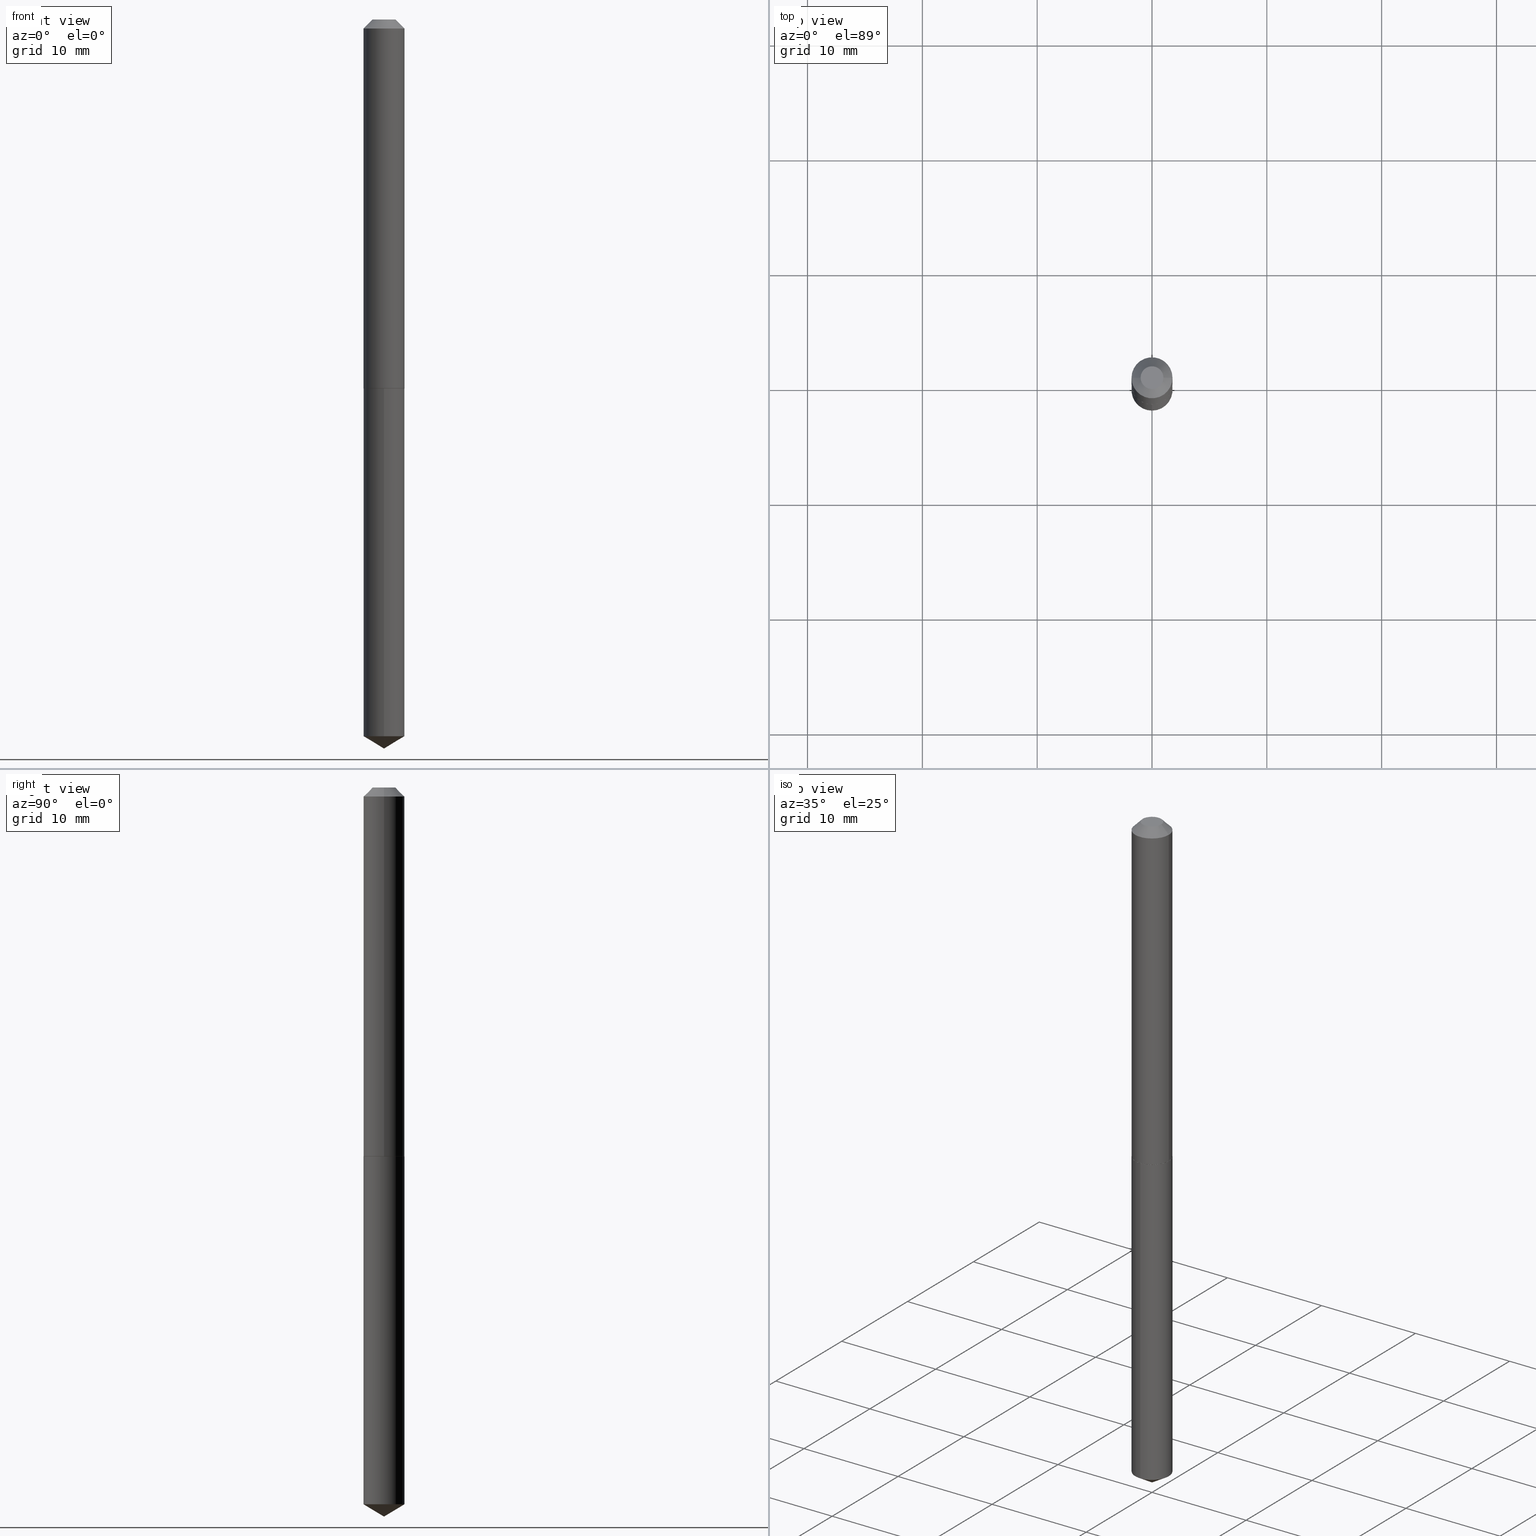
[diagram: canonical four-view strip — front | top / right | iso, engineering-drawing reading convention]
A machine part, canonical four-view strip (front | top / right | iso — engineering-drawing reading convention). The complete STEP part file that produces these views, byte-faithful:
ISO-10303-21;
HEADER;
FILE_DESCRIPTION (( 'STEP AP203' ),
    '1' );
FILE_NAME ('57137.STEP',
    '2024-04-22T22:45:14',
    ( '' ),
    ( '' ),
    'SwSTEP 2.0',
    'SolidWorks 2023',
    '' );
FILE_SCHEMA (( 'CONFIG_CONTROL_DESIGN' ));
ENDSEC;

DATA;
#1 = EDGE_CURVE ( 'NONE', #241, #202, #126, .T. ) ;
#2 = CIRCLE ( 'NONE', #372, 0.06980000000000016747 ) ;
#3 = DIRECTION ( 'NONE',  ( 0.000000000000000000, 0.000000000000000000, 1.000000000000000000 ) ) ;
#4 = ORIENTED_EDGE ( 'NONE', *, *, #49, .F. ) ;
#5 = DATE_AND_TIME ( #89, #296 ) ;
#6 = EDGE_CURVE ( 'NONE', #202, #34, #174, .T. ) ;
#7 = EDGE_LOOP ( 'NONE', ( #306, #141, #198 ) ) ;
#8 = APPROVAL_STATUS ( 'not_yet_approved' ) ;
#9 = VERTEX_POINT ( 'NONE', #217 ) ;
#10 = CARTESIAN_POINT ( 'NONE',  ( -9.016977139897410134E-28, 1.287238254418339173E-13, 36.87007874015748143 ) ) ;
#11 = DIRECTION ( 'NONE',  ( -6.982962677686265133E-15, -1.000000000000000000, 3.885985766236505386E-15 ) ) ;
#12 = DIRECTION ( 'NONE',  ( 1.000000000000000000, -6.982962677686269077E-15, 0.000000000000000000 ) ) ;
#13 = APPROVAL ( #363, 'UNSPECIFIED' ) ;
#14 = CARTESIAN_POINT ( 'NONE',  ( -0.07030000000000000138, 3.817934844024955509E-16, -0.03125000000000020817 ) ) ;
#15 = CIRCLE ( 'NONE', #132, 0.07030000000000015403 ) ;
#16 = DIRECTION ( 'NONE',  ( -6.982962677686266711E-15, -1.000000000000000000, 3.468864327941567787E-15 ) ) ;
#17 = CARTESIAN_POINT ( 'NONE',  ( 6.010534991931295014E-29, -8.580991141991559447E-15, -2.457759498482362748 ) ) ;
#18 = VERTEX_POINT ( 'NONE', #183 ) ;
#19 = AXIS2_PLACEMENT_3D ( 'NONE', #17, #291, #381 ) ;
#20 = APPROVAL_PERSON_ORGANIZATION ( #27, #13, #35 ) ;
#21 = EDGE_CURVE ( 'NONE', #18, #351, #336, .T. ) ;
#22 = DIRECTION ( 'NONE',  ( 2.445468806185136597E-29, -3.491481338843145583E-15, -1.000000000000000000 ) ) ;
#23 = DIRECTION ( 'NONE',  ( -2.445468806185136597E-29, 3.491481338843145583E-15, 1.000000000000000000 ) ) ;
#24 = CARTESIAN_POINT ( 'NONE',  ( -0.03905000000000000138, 3.272390884830720852E-16, 6.123233993638337752E-21 ) ) ;
#25 = ORIENTED_EDGE ( 'NONE', *, *, #304, .T. ) ;
#26 = CIRCLE ( 'NONE', #64, 0.03905000000000000138 ) ;
#27 = PERSON_AND_ORGANIZATION ( #71, #279 ) ;
#28 = CARTESIAN_POINT ( 'NONE',  ( 7.642090019328602662E-31, -1.091087918388490267E-16, -0.03125000000000020817 ) ) ;
#29 = COORDINATED_UNIVERSAL_TIME_OFFSET ( 5, 0, .BEHIND. ) ;
#30 = VERTEX_POINT ( 'NONE', #298 ) ;
#31 = CIRCLE ( 'NONE', #258, 0.07030000000000000138 ) ;
#32 = EDGE_CURVE ( 'NONE', #9, #351, #200, .T. ) ;
#33 = DATE_AND_TIME ( #175, #253 ) ;
#34 = VERTEX_POINT ( 'NONE', #205 ) ;
#35 = APPROVAL_ROLE ( '' ) ;
#36 = ORIENTED_EDGE ( 'NONE', *, *, #223, .T. ) ;
#37 = PRODUCT_DEFINITION_SHAPE ( 'NONE', 'NONE',  #184 ) ;
#38 = DIRECTION ( 'NONE',  ( -2.445468806185136597E-29, 3.491481338843145583E-15, 1.000000000000000000 ) ) ;
#39 = FACE_OUTER_BOUND ( 'NONE', #152, .T. ) ;
#40 = APPROVAL_PERSON_ORGANIZATION ( #210, #110, #115 ) ;
#41 = CARTESIAN_POINT ( 'NONE',  ( 6.010534991931295014E-29, -8.580991141991559447E-15, -2.457759498482362748 ) ) ;
#42 = APPROVAL ( #8, 'UNSPECIFIED' ) ;
#43 = LINE ( 'NONE', #307, #236 ) ;
#44 = DIRECTION ( 'NONE',  ( -1.000000000000000000, 6.982962677686265922E-15, -4.876176775795935793E-29 ) ) ;
#45 = FACE_OUTER_BOUND ( 'NONE', #7, .T. ) ;
#46 = ORIENTED_EDGE ( 'NONE', *, *, #70, .F. ) ;
#47 = DIRECTION ( 'NONE',  ( 0.7071067811866078578, -2.468850131082888544E-15, 0.7071067811864871766 ) ) ;
#48 = PLANE ( 'NONE',  #54 ) ;
#49 = EDGE_CURVE ( 'NONE', #301, #18, #339, .T. ) ;
#50 = ADVANCED_FACE ( 'NONE', ( #362 ), #91, .T. ) ;
#51 = DIRECTION ( 'NONE',  ( -2.445468806185136597E-29, 3.491481338843145583E-15, 1.000000000000000000 ) ) ;
#52 = DATE_AND_TIME ( #215, #361 ) ;
#53 = VECTOR ( 'NONE', #330, 39.37007874015748854 ) ;
#54 = AXIS2_PLACEMENT_3D ( 'NONE', #169, #293, #195 ) ;
#55 = PERSON_AND_ORGANIZATION_ROLE ( 'design_owner' ) ;
#56 = EDGE_LOOP ( 'NONE', ( #213, #364, #137, #125 ) ) ;
#57 = APPROVAL_STATUS ( 'not_yet_approved' ) ;
#58 = CARTESIAN_POINT ( 'NONE',  ( 3.094985321107909650E-29, -4.418818782439885749E-15, -1.265600000000000280 ) ) ;
#59 = PERSON_AND_ORGANIZATION ( #71, #279 ) ;
#60 = ORIENTED_EDGE ( 'NONE', *, *, #180, .T. ) ;
#61 = DIMENSIONAL_EXPONENTS ( 1.000000000000000000, 0.000000000000000000, 0.000000000000000000, 0.000000000000000000, 0.000000000000000000, 0.000000000000000000, 0.000000000000000000 ) ;
#62 = DESIGN_CONTEXT ( 'detailed design', #102, 'design' ) ;
#63 = APPROVAL_DATE_TIME ( #333, #42 ) ;
#64 = AXIS2_PLACEMENT_3D ( 'NONE', #266, #23, #346 ) ;
#65 = VERTEX_POINT ( 'NONE', #131 ) ;
#66 = DIRECTION ( 'NONE',  ( -2.445468806185136877E-29, 3.491481338843145188E-15, 1.000000000000000000 ) ) ;
#67 = DIRECTION ( 'NONE',  ( -2.445603691901062614E-29, 3.491288174820721411E-15, 1.000000000000000000 ) ) ;
#68 = AXIS2_PLACEMENT_3D ( 'NONE', #41, #221, #338 ) ;
#69 = DIRECTION ( 'NONE',  ( -2.445468806185136597E-29, 3.491481338843145583E-15, 1.000000000000000000 ) ) ;
#70 = EDGE_CURVE ( 'NONE', #317, #30, #2, .T. ) ;
#71 = PERSON ( 'UNSPECIFIED', 'UNSPECIFIED', 'UNSPECIFIED', ('UNSPECIFIED'), ('UNSPECIFIED'), ('UNSPECIFIED') ) ;
#72 = DIRECTION ( 'NONE',  ( 1.000000000000000000, -6.982962677686268288E-15, 0.000000000000000000 ) ) ;
#73 = ADVANCED_FACE ( 'NONE', ( #39 ), #337, .F. ) ;
#74 = CARTESIAN_POINT ( 'NONE',  ( 3.094985321107909650E-29, -4.418818782439885749E-15, -1.265600000000000280 ) ) ;
#75 = DIRECTION ( 'NONE',  ( -2.445468806185136877E-29, 3.491481338843145188E-15, 1.000000000000000000 ) ) ;
#76 = CLOSED_SHELL ( 'NONE', ( #292, #267, #352, #385, #90, #375, #234, #73 ) ) ;
#77 = LINE ( 'NONE', #353, #368 ) ;
#78 = EDGE_LOOP ( 'NONE', ( #247, #320, #233, #349 ) ) ;
#79 = DIRECTION ( 'NONE',  ( 1.000000000000000000, -6.982962677686266711E-15, 4.876176775795936353E-29 ) ) ;
#80 = DIRECTION ( 'NONE',  ( -2.445468806185136597E-29, 3.491481338843145583E-15, 1.000000000000000000 ) ) ;
#81 = ORIENTED_EDGE ( 'NONE', *, *, #343, .F. ) ;
#82 = DIRECTION ( 'NONE',  ( -2.445468806185136597E-29, 3.491481338843145583E-15, 1.000000000000000000 ) ) ;
#83 = ORIENTED_EDGE ( 'NONE', *, *, #32, .F. ) ;
#84 = PRODUCT ( '57137', '57137', '', ( #244 ) ) ;
#85 = CARTESIAN_POINT ( 'NONE',  ( 0.03905000000000000138, -4.296521239475828871E-16, 6.123233998190920920E-21 ) ) ;
#86 = ORIENTED_EDGE ( 'NONE', *, *, #304, .F. ) ;
#87 = CONICAL_SURFACE ( 'NONE', #360, 65.52281426576892898, 1.029744258676657864 ) ;
#88 = CC_DESIGN_APPROVAL ( #110, ( #184 ) ) ;
#89 = CALENDAR_DATE ( 2024, 22, 4 ) ;
#90 = ADVANCED_FACE ( 'NONE', ( #101 ), #308, .T. ) ;
#91 = CYLINDRICAL_SURFACE ( 'NONE', #321, 0.07030000000000000138 ) ;
#92 = APPROVAL_DATE_TIME ( #365, #13 ) ;
#93 = ORIENTED_EDGE ( 'NONE', *, *, #1, .T. ) ;
#94 = MANIFOLD_SOLID_BREP ( 'Body-Move/Copy2[2]', #76 ) ;
#95 = ORIENTED_EDGE ( 'NONE', *, *, #177, .T. ) ;
#96 = AXIS2_PLACEMENT_3D ( 'NONE', #369, #222, #16 ) ;
#97 = DIRECTION ( 'NONE',  ( -2.445603691901062614E-29, 3.491288174820721017E-15, 1.000000000000000000 ) ) ;
#98 = DIRECTION ( 'NONE',  ( 2.445603691901062614E-29, -3.491288174820721017E-15, -1.000000000000000000 ) ) ;
#99 = DIRECTION ( 'NONE',  ( 6.982962677686265922E-15, 1.000000000000000000, -3.491288174820721017E-15 ) ) ;
#100 = APPROVAL_PERSON_ORGANIZATION ( #123, #42, #248 ) ;
#101 = FACE_OUTER_BOUND ( 'NONE', #155, .T. ) ;
#102 = APPLICATION_CONTEXT ( 'configuration controlled 3d designs of mechanical parts and assemblies' ) ;
#103 = CARTESIAN_POINT ( 'NONE',  ( 3.094985321107909650E-29, -4.418818782439885749E-15, -1.265600000000000280 ) ) ;
#104 = CARTESIAN_POINT ( 'NONE',  ( -0.07030000000000007077, 4.995115432393509335E-16, -3.458011368449202373E-30 ) ) ;
#105 = CC_DESIGN_PERSON_AND_ORGANIZATION_ASSIGNMENT ( #59, #149, ( #184 ) ) ;
#106 = CARTESIAN_POINT ( 'NONE',  ( 0.000000000000000000, 0.000000000000000000, 0.000000000000000000 ) ) ;
#107 = CLOSED_SHELL ( 'NONE', ( #218, #114, #256, #50, #122 ) ) ;
#108 = AXIS2_PLACEMENT_3D ( 'NONE', #106, #112, #79 ) ;
#109 = DIRECTION ( 'NONE',  ( -6.982962677686266711E-15, -1.000000000000000000, 3.468864327941567787E-15 ) ) ;
#110 = APPROVAL ( #57, 'UNSPECIFIED' ) ;
#111 = FACE_OUTER_BOUND ( 'NONE', #272, .T. ) ;
#112 = DIRECTION ( 'NONE',  ( -2.445468806185136597E-29, 3.491481338843145583E-15, 1.000000000000000000 ) ) ;
#113 = AXIS2_PLACEMENT_3D ( 'NONE', #103, #280, #311 ) ;
#114 = ADVANCED_FACE ( 'NONE', ( #191 ), #300, .T. ) ;
#115 = APPROVAL_ROLE ( '' ) ;
#116 = ORIENTED_EDGE ( 'NONE', *, *, #240, .F. ) ;
#117 = COORDINATED_UNIVERSAL_TIME_OFFSET ( 5, 0, .BEHIND. ) ;
#118 = DIRECTION ( 'NONE',  ( -2.445468806185136597E-29, 3.491481338843145583E-15, 1.000000000000000000 ) ) ;
#119 = CC_DESIGN_APPROVAL ( #13, ( #162 ) ) ;
#120 = DATE_TIME_ROLE ( 'creation_date' ) ;
#121 = ORIENTED_EDGE ( 'NONE', *, *, #21, .F. ) ;
#122 = ADVANCED_FACE ( 'NONE', ( #159 ), #261, .F. ) ;
#123 = PERSON_AND_ORGANIZATION ( #71, #279 ) ;
#124 = CC_DESIGN_PERSON_AND_ORGANIZATION_ASSIGNMENT ( #204, #55, ( #84 ) ) ;
#125 = ORIENTED_EDGE ( 'NONE', *, *, #223, .F. ) ;
#126 = LINE ( 'NONE', #367, #53 ) ;
#127 = AXIS2_PLACEMENT_3D ( 'NONE', #163, #255, #134 ) ;
#128 = CC_DESIGN_APPROVAL ( #42, ( #273 ) ) ;
#129 = DIRECTION ( 'NONE',  ( -2.445603691901062614E-29, 3.491288174820721411E-15, 1.000000000000000000 ) ) ;
#130 = DIRECTION ( 'NONE',  ( -0.7071067811865451302, 2.468850131082231817E-15, -0.7071067811865499042 ) ) ;
#131 = CARTESIAN_POINT ( 'NONE',  ( -4.909022762413135901E-16, -0.07030000000000441451, -1.265600000000000058 ) ) ;
#132 = AXIS2_PLACEMENT_3D ( 'NONE', #370, #344, #285 ) ;
#133 = CARTESIAN_POINT ( 'NONE',  ( 3.094985321107909650E-29, -4.418818782439885749E-15, -1.265600000000000280 ) ) ;
#134 = DIRECTION ( 'NONE',  ( -1.000000000000000000, 6.982962677686266711E-15, 0.000000000000000000 ) ) ;
#135 = LENGTH_MEASURE_WITH_UNIT ( LENGTH_MEASURE( 0.02539999999999999897 ), #142 );
#136 = CYLINDRICAL_SURFACE ( 'NONE', #108, 0.07030000000000007077 ) ;
#137 = ORIENTED_EDGE ( 'NONE', *, *, #138, .T. ) ;
#138 = EDGE_CURVE ( 'NONE', #351, #9, #31, .T. ) ;
#139 = FACE_OUTER_BOUND ( 'NONE', #143, .T. ) ;
#140 = LINE ( 'NONE', #377, #278 ) ;
#141 = ORIENTED_EDGE ( 'NONE', *, *, #388, .T. ) ;
#142 =( LENGTH_UNIT ( ) NAMED_UNIT ( * ) SI_UNIT ( $, .METRE. ) );
#143 = EDGE_LOOP ( 'NONE', ( #269, #358, #276, #86 ) ) ;
#144 = AXIS2_PLACEMENT_3D ( 'NONE', #28, #38, #245 ) ;
#145 = VECTOR ( 'NONE', #286, 39.37007874015748854 ) ;
#146 = CALENDAR_DATE ( 2024, 22, 4 ) ;
#147 = PERSON_AND_ORGANIZATION_ROLE ( 'classification_officer' ) ;
#148 = CARTESIAN_POINT ( 'NONE',  ( 3.093762586704817409E-29, -4.417073041770464246E-15, -1.265100000000000335 ) ) ;
#149 = PERSON_AND_ORGANIZATION_ROLE ( 'creator' ) ;
#150 = ORIENTED_EDGE ( 'NONE', *, *, #262, .T. ) ;
#151 = PERSON_AND_ORGANIZATION ( #71, #279 ) ;
#152 = EDGE_LOOP ( 'NONE', ( #332, #182 ) ) ;
#153 = DATE_TIME_ROLE ( 'classification_date' ) ;
#154 = ORIENTED_EDGE ( 'NONE', *, *, #180, .F. ) ;
#155 = EDGE_LOOP ( 'NONE', ( #196, #326, #25, #4 ) ) ;
#156 = VECTOR ( 'NONE', #66, 39.37007874015748143 ) ;
#157 = DIRECTION ( 'NONE',  ( -2.445603691901062614E-29, 3.491288174820721411E-15, 1.000000000000000000 ) ) ;
#158 = CARTESIAN_POINT ( 'NONE',  ( 3.094985321107909650E-29, -4.418818782439885749E-15, -1.265600000000000280 ) ) ;
#159 = FACE_OUTER_BOUND ( 'NONE', #390, .T. ) ;
#160 = CC_DESIGN_DATE_AND_TIME_ASSIGNMENT ( #33, #120, ( #184 ) ) ;
#161 = CIRCLE ( 'NONE', #173, 0.07030000000000000138 ) ;
#162 = PRODUCT_DEFINITION_FORMATION_WITH_SPECIFIED_SOURCE ( 'ANY', '', #84, .NOT_KNOWN. ) ;
#163 = CARTESIAN_POINT ( 'NONE',  ( 7.642090019328602662E-31, -1.091087918388490267E-16, -0.03125000000000020817 ) ) ;
#164 = EDGE_CURVE ( 'NONE', #65, #34, #206, .T. ) ;
#165 = UNCERTAINTY_MEASURE_WITH_UNIT (LENGTH_MEASURE( 1.000000000000000082E-05 ), #354, 'distance_accuracy_value', 'NONE');
#166 = FACE_OUTER_BOUND ( 'NONE', #329, .T. ) ;
#167 = VECTOR ( 'NONE', #97, 39.37007874015748143 ) ;
#168 = LOCAL_TIME ( 18, 45, 14.00000000000000000, #271 ) ;
#169 = CARTESIAN_POINT ( 'NONE',  ( 3.094985321107909650E-29, -4.418818782439885749E-15, -1.265600000000000280 ) ) ;
#170 = LINE ( 'NONE', #294, #145 ) ;
#171 = ORIENTED_EDGE ( 'NONE', *, *, #49, .T. ) ;
#172 = ORIENTED_EDGE ( 'NONE', *, *, #164, .T. ) ;
#173 = AXIS2_PLACEMENT_3D ( 'NONE', #189, #67, #11 ) ;
#174 = LINE ( 'NONE', #251, #167 ) ;
#175 = CALENDAR_DATE ( 2024, 22, 4 ) ;
#176 = DIRECTION ( 'NONE',  ( -2.445603691901062614E-29, 3.491288174820721411E-15, 1.000000000000000000 ) ) ;
#177 = EDGE_CURVE ( 'NONE', #18, #301, #15, .T. ) ;
#178 = PERSON_AND_ORGANIZATION ( #71, #279 ) ;
#179 = EDGE_LOOP ( 'NONE', ( #239, #150, #335, #154 ) ) ;
#180 = EDGE_CURVE ( 'NONE', #34, #65, #161, .T. ) ;
#181 = SHAPE_DEFINITION_REPRESENTATION ( #37, #231 ) ;
#182 = ORIENTED_EDGE ( 'NONE', *, *, #324, .T. ) ;
#183 = CARTESIAN_POINT ( 'NONE',  ( 0.07030000000000015403, -4.907975318011809982E-15, -1.265100000000000335 ) ) ;
#184 = PRODUCT_DEFINITION ( 'UNKNOWN', '', #162, #62 ) ;
#185 = LINE ( 'NONE', #342, #192 ) ;
#186 = CIRCLE ( 'NONE', #19, 0.07030000000000000138 ) ;
#187 = AXIS2_PLACEMENT_3D ( 'NONE', #379, #201, #325 ) ;
#188 = FACE_OUTER_BOUND ( 'NONE', #78, .T. ) ;
#189 = CARTESIAN_POINT ( 'NONE',  ( 3.094985321107909650E-29, -4.418818782439885749E-15, -1.265600000000000280 ) ) ;
#190 = EDGE_CURVE ( 'NONE', #30, #301, #43, .T. ) ;
#191 = FACE_OUTER_BOUND ( 'NONE', #380, .T. ) ;
#192 = VECTOR ( 'NONE', #257, 39.37007874015748143 ) ;
#193 = AXIS2_PLACEMENT_3D ( 'NONE', #242, #3, #297 ) ;
#194 = CARTESIAN_POINT ( 'NONE',  ( -4.909022762412844023E-16, -0.07030000000000859173, -2.457759498482362748 ) ) ;
#195 = DIRECTION ( 'NONE',  ( 1.000000000000000000, -6.982962677686265922E-15, 4.876176775795935793E-29 ) ) ;
#196 = ORIENTED_EDGE ( 'NONE', *, *, #190, .F. ) ;
#197 = CARTESIAN_POINT ( 'NONE',  ( 3.094985321107909650E-29, -4.418818782439885749E-15, -1.265600000000000280 ) ) ;
#198 = ORIENTED_EDGE ( 'NONE', *, *, #262, .F. ) ;
#199 = CARTESIAN_POINT ( 'NONE',  ( 0.000000000000000000, 0.000000000000000000, 0.000000000000000000 ) ) ;
#200 = CIRCLE ( 'NONE', #144, 0.07030000000000000138 ) ;
#201 = DIRECTION ( 'NONE',  ( -2.445468806185136597E-29, 3.491481338843145583E-15, 1.000000000000000000 ) ) ;
#202 = VERTEX_POINT ( 'NONE', #259 ) ;
#203 = EDGE_CURVE ( 'NONE', #305, #351, #185, .T. ) ;
#204 = PERSON_AND_ORGANIZATION ( #71, #279 ) ;
#205 = CARTESIAN_POINT ( 'NONE',  ( 4.995115432394106897E-16, 0.07029999999999557436, -1.265600000000000502 ) ) ;
#206 = CIRCLE ( 'NONE', #113, 0.07030000000000000138 ) ;
#207 = AXIS2_PLACEMENT_3D ( 'NONE', #199, #51, #350 ) ;
#208 = PERSON_AND_ORGANIZATION_ROLE ( 'design_supplier' ) ;
#209 = CARTESIAN_POINT ( 'NONE',  ( 0.07030000000000007077, -4.909022762413450459E-16, 3.427952273384546640E-30 ) ) ;
#210 = PERSON_AND_ORGANIZATION ( #71, #279 ) ;
#211 = ORIENTED_EDGE ( 'NONE', *, *, #388, .F. ) ;
#212 = APPROVAL_DATE_TIME ( #52, #110 ) ;
#213 = ORIENTED_EDGE ( 'NONE', *, *, #324, .F. ) ;
#214 = CONICAL_SURFACE ( 'NONE', #237, 0.07030000000000000138, 0.7853981633974449483 ) ;
#215 = CALENDAR_DATE ( 2024, 22, 4 ) ;
#216 = APPLICATION_CONTEXT ( 'configuration controlled 3d designs of mechanical parts and assemblies' ) ;
#217 = CARTESIAN_POINT ( 'NONE',  ( -0.07030000000000000138, -1.763579373565305049E-15, -0.03125000000000020817 ) ) ;
#218 = ADVANCED_FACE ( 'NONE', ( #188 ), #371, .T. ) ;
#219 = DIRECTION ( 'NONE',  ( -2.445468806185136597E-29, 3.491481338843145583E-15, 1.000000000000000000 ) ) ;
#220 = MANIFOLD_SOLID_BREP ( 'Body-Move/Copy2[1]', #107 ) ;
#221 = DIRECTION ( 'NONE',  ( -2.445603691901062614E-29, 3.491288174820721411E-15, 1.000000000000000000 ) ) ;
#222 = DIRECTION ( 'NONE',  ( -2.445603691901062614E-29, 3.491288174820721411E-15, 1.000000000000000000 ) ) ;
#223 = EDGE_CURVE ( 'NONE', #366, #9, #283, .T. ) ;
#224 = CARTESIAN_POINT ( 'NONE',  ( 3.093762586704817409E-29, -4.417073041770464246E-15, -1.265100000000000335 ) ) ;
#225 = DIRECTION ( 'NONE',  ( -6.982962677686265133E-15, -1.000000000000000000, 3.885985766236505386E-15 ) ) ;
#226 = CIRCLE ( 'NONE', #68, 0.07030000000000000138 ) ;
#227 = AXIS2_PLACEMENT_3D ( 'NONE', #229, #80, #235 ) ;
#228 = CARTESIAN_POINT ( 'NONE',  ( 7.642090019328602662E-31, -1.091087918388490267E-16, -0.03125000000000020817 ) ) ;
#229 = CARTESIAN_POINT ( 'NONE',  ( -1.497417772954437449E-49, 2.137915722948164235E-35, 6.123233995735842475E-21 ) ) ;
#230 = ORIENTED_EDGE ( 'NONE', *, *, #138, .F. ) ;
#231 = ADVANCED_BREP_SHAPE_REPRESENTATION ( '57137', ( #220, #94, #193 ), #246 ) ;
#232 = CYLINDRICAL_SURFACE ( 'NONE', #207, 0.07030000000000007077 ) ;
#233 = ORIENTED_EDGE ( 'NONE', *, *, #164, .F. ) ;
#234 = ADVANCED_FACE ( 'NONE', ( #315 ), #295, .T. ) ;
#235 = DIRECTION ( 'NONE',  ( 1.000000000000000000, -6.982962677686266711E-15, 4.876177211367492977E-29 ) ) ;
#236 = VECTOR ( 'NONE', #281, 39.37007874015748143 ) ;
#237 = AXIS2_PLACEMENT_3D ( 'NONE', #228, #22, #327 ) ;
#238 = EDGE_CURVE ( 'NONE', #249, #202, #226, .T. ) ;
#239 = ORIENTED_EDGE ( 'NONE', *, *, #6, .F. ) ;
#240 = EDGE_CURVE ( 'NONE', #301, #9, #376, .T. ) ;
#241 = VERTEX_POINT ( 'NONE', #277 ) ;
#242 = CARTESIAN_POINT ( 'NONE',  ( 0.000000000000000000, 0.000000000000000000, 0.000000000000000000 ) ) ;
#243 = EDGE_LOOP ( 'NONE', ( #382, #347, #36, #289 ) ) ;
#244 = MECHANICAL_CONTEXT ( 'NONE', #216, 'mechanical' ) ;
#245 = DIRECTION ( 'NONE',  ( 1.000000000000000000, -6.982962677686268288E-15, 0.000000000000000000 ) ) ;
#246 =( GEOMETRIC_REPRESENTATION_CONTEXT ( 3 ) GLOBAL_UNCERTAINTY_ASSIGNED_CONTEXT ( ( #165 ) ) GLOBAL_UNIT_ASSIGNED_CONTEXT ( ( #354, #316, #288 ) ) REPRESENTATION_CONTEXT ( 'NONE', 'WORKASPACE' ) );
#247 = ORIENTED_EDGE ( 'NONE', *, *, #238, .T. ) ;
#248 = APPROVAL_ROLE ( '' ) ;
#249 = VERTEX_POINT ( 'NONE', #194 ) ;
#250 = CALENDAR_DATE ( 2024, 22, 4 ) ;
#251 = CARTESIAN_POINT ( 'NONE',  ( 4.995115432393813046E-16, 0.07029999999999557436, -1.265600000000000502 ) ) ;
#252 = AXIS2_PLACEMENT_3D ( 'NONE', #133, #157, #225 ) ;
#253 = LOCAL_TIME ( 18, 45, 14.00000000000000000, #117 ) ;
#254 = DIRECTION ( 'NONE',  ( -2.445468806185136597E-29, 3.491481338843145583E-15, 1.000000000000000000 ) ) ;
#255 = DIRECTION ( 'NONE',  ( 2.445468806185136597E-29, -3.491481338843145583E-15, -1.000000000000000000 ) ) ;
#256 = ADVANCED_FACE ( 'NONE', ( #45 ), #87, .T. ) ;
#257 = DIRECTION ( 'NONE',  ( 0.7071067811865451302, -7.319954787623248157E-15, -0.7071067811865499042 ) ) ;
#258 = AXIS2_PLACEMENT_3D ( 'NONE', #341, #219, #72 ) ;
#259 = CARTESIAN_POINT ( 'NONE',  ( 4.995115432394104925E-16, 0.07029999999999142490, -2.457759498482363192 ) ) ;
#260 = EDGE_CURVE ( 'NONE', #249, #65, #140, .T. ) ;
#261 = PLANE ( 'NONE',  #313 ) ;
#262 = EDGE_CURVE ( 'NONE', #202, #249, #186, .T. ) ;
#263 = VECTOR ( 'NONE', #75, 39.37007874015748143 ) ;
#264 = DIRECTION ( 'NONE',  ( -2.445603691901062614E-29, 3.491288174820721017E-15, 1.000000000000000000 ) ) ;
#265 = ORIENTED_EDGE ( 'NONE', *, *, #21, .T. ) ;
#266 = CARTESIAN_POINT ( 'NONE',  ( -1.497417772954437449E-49, 2.137915722948164235E-35, 6.123233995735842475E-21 ) ) ;
#267 = ADVANCED_FACE ( 'NONE', ( #166 ), #136, .T. ) ;
#268 = CARTESIAN_POINT ( 'NONE',  ( -0.07030000000000015403, -3.917561498531112819E-15, -1.265100000000000335 ) ) ;
#269 = ORIENTED_EDGE ( 'NONE', *, *, #70, .T. ) ;
#270 = DIRECTION ( 'NONE',  ( 1.000000000000000000, -6.982962677686264344E-15, 0.000000000000000000 ) ) ;
#271 = COORDINATED_UNIVERSAL_TIME_OFFSET ( 5, 0, .BEHIND. ) ;
#272 = EDGE_LOOP ( 'NONE', ( #116, #171, #265, #83 ) ) ;
#273 = SECURITY_CLASSIFICATION ( '', '', #274 ) ;
#274 = SECURITY_CLASSIFICATION_LEVEL ( 'unclassified' ) ;
#275 = ORIENTED_EDGE ( 'NONE', *, *, #238, .F. ) ;
#276 = ORIENTED_EDGE ( 'NONE', *, *, #177, .F. ) ;
#277 = CARTESIAN_POINT ( 'NONE',  ( 6.114009229752657937E-29, -8.728220437051803923E-15, -2.500000000000000000 ) ) ;
#278 = VECTOR ( 'NONE', #264, 39.37007874015748143 ) ;
#279 = ORGANIZATION ( 'UNSPECIFIED', 'UNSPECIFIED', '' ) ;
#280 = DIRECTION ( 'NONE',  ( -2.445603691901062614E-29, 3.491288174820721411E-15, 1.000000000000000000 ) ) ;
#281 = DIRECTION ( 'NONE',  ( -0.7071067811866078578, 7.493145998870571886E-15, 0.7071067811864871766 ) ) ;
#282 = EDGE_CURVE ( 'NONE', #366, #305, #340, .T. ) ;
#283 = LINE ( 'NONE', #14, #383 ) ;
#284 = CIRCLE ( 'NONE', #314, 0.06980000000000016747 ) ;
#285 = DIRECTION ( 'NONE',  ( 1.000000000000000000, -6.982962677686264344E-15, 0.000000000000000000 ) ) ;
#286 = DIRECTION ( 'NONE',  ( -5.985567269335955479E-15, -0.8571673007021122226, 0.5150380749100541555 ) ) ;
#287 = CC_DESIGN_DATE_AND_TIME_ASSIGNMENT ( #5, #153, ( #273 ) ) ;
#288 =( NAMED_UNIT ( * ) SI_UNIT ( $, .STERADIAN. ) SOLID_ANGLE_UNIT ( ) );
#289 = ORIENTED_EDGE ( 'NONE', *, *, #32, .T. ) ;
#290 = AXIS2_PLACEMENT_3D ( 'NONE', #148, #118, #270 ) ;
#291 = DIRECTION ( 'NONE',  ( -2.445603691901062614E-29, 3.491288174820721411E-15, 1.000000000000000000 ) ) ;
#292 = ADVANCED_FACE ( 'NONE', ( #348 ), #214, .T. ) ;
#293 = DIRECTION ( 'NONE',  ( -2.438088387897960049E-29, 3.491481338843145188E-15, 1.000000000000000000 ) ) ;
#294 = CARTESIAN_POINT ( 'NONE',  ( 6.113667807028506025E-29, -8.728709373825364721E-15, -2.500000000000000000 ) ) ;
#295 = CONICAL_SURFACE ( 'NONE', #127, 0.07030000000000000138, 0.7853981633974449483 ) ;
#296 = LOCAL_TIME ( 18, 45, 14.00000000000000000, #331 ) ;
#297 = DIRECTION ( 'NONE',  ( 1.000000000000000000, 0.000000000000000000, 0.000000000000000000 ) ) ;
#298 = CARTESIAN_POINT ( 'NONE',  ( -0.06980000000000016747, -3.920210725705223231E-15, -1.265600000000000280 ) ) ;
#299 = DIRECTION ( 'NONE',  ( -6.982962677686265133E-15, -1.000000000000000000, 3.885985766236505386E-15 ) ) ;
#300 = CONICAL_SURFACE ( 'NONE', #96, 65.52281426576892898, 1.029744258676657864 ) ;
#301 = VERTEX_POINT ( 'NONE', #268 ) ;
#302 = CC_DESIGN_PERSON_AND_ORGANIZATION_ASSIGNMENT ( #386, #357, ( #162 ) ) ;
#303 = COORDINATED_UNIVERSAL_TIME_OFFSET ( 5, 0, .BEHIND. ) ;
#304 = EDGE_CURVE ( 'NONE', #317, #18, #77, .T. ) ;
#305 = VERTEX_POINT ( 'NONE', #85 ) ;
#306 = ORIENTED_EDGE ( 'NONE', *, *, #1, .F. ) ;
#307 = CARTESIAN_POINT ( 'NONE',  ( -0.07030000000000015403, -3.917561498531112819E-15, -1.265100000000000335 ) ) ;
#308 = CONICAL_SURFACE ( 'NONE', #334, 0.07030000000000015403, 0.7853981633975336552 ) ;
#309 = CC_DESIGN_SECURITY_CLASSIFICATION ( #273, ( #162 ) ) ;
#310 = DIRECTION ( 'NONE',  ( 1.000000000000000000, -6.982962677686264344E-15, 0.000000000000000000 ) ) ;
#311 = DIRECTION ( 'NONE',  ( -6.982962677686265133E-15, -1.000000000000000000, 3.885985766236505386E-15 ) ) ;
#312 = DIRECTION ( 'NONE',  ( 2.438088387897960049E-29, -3.491481338843145188E-15, -1.000000000000000000 ) ) ;
#313 = AXIS2_PLACEMENT_3D ( 'NONE', #158, #98, #99 ) ;
#314 = AXIS2_PLACEMENT_3D ( 'NONE', #197, #82, #318 ) ;
#315 = FACE_OUTER_BOUND ( 'NONE', #243, .T. ) ;
#316 =( NAMED_UNIT ( * ) PLANE_ANGLE_UNIT ( ) SI_UNIT ( $, .RADIAN. ) );
#317 = VERTEX_POINT ( 'NONE', #378 ) ;
#318 = DIRECTION ( 'NONE',  ( 1.000000000000000000, -6.982962677686269077E-15, 0.000000000000000000 ) ) ;
#319 = CC_DESIGN_PERSON_AND_ORGANIZATION_ASSIGNMENT ( #178, #147, ( #273 ) ) ;
#320 = ORIENTED_EDGE ( 'NONE', *, *, #6, .T. ) ;
#321 = AXIS2_PLACEMENT_3D ( 'NONE', #58, #176, #299 ) ;
#322 = CONICAL_SURFACE ( 'NONE', #187, 0.07030000000000015403, 0.7853981633975336552 ) ;
#323 = FACE_OUTER_BOUND ( 'NONE', #387, .T. ) ;
#324 = EDGE_CURVE ( 'NONE', #305, #366, #26, .T. ) ;
#325 = DIRECTION ( 'NONE',  ( 1.000000000000000000, -6.982962677686264344E-15, 0.000000000000000000 ) ) ;
#326 = ORIENTED_EDGE ( 'NONE', *, *, #343, .T. ) ;
#327 = DIRECTION ( 'NONE',  ( -1.000000000000000000, 6.982962677686266711E-15, 0.000000000000000000 ) ) ;
#328 = LOCAL_TIME ( 18, 45, 14.00000000000000000, #303 ) ;
#329 = EDGE_LOOP ( 'NONE', ( #95, #355, #230, #121 ) ) ;
#330 = DIRECTION ( 'NONE',  ( 6.090539988449791057E-15, 0.8571673007021157753, 0.5150380749100482713 ) ) ;
#331 = COORDINATED_UNIVERSAL_TIME_OFFSET ( 5, 0, .BEHIND. ) ;
#332 = ORIENTED_EDGE ( 'NONE', *, *, #282, .T. ) ;
#333 = DATE_AND_TIME ( #250, #328 ) ;
#334 = AXIS2_PLACEMENT_3D ( 'NONE', #224, #69, #310 ) ;
#335 = ORIENTED_EDGE ( 'NONE', *, *, #260, .T. ) ;
#336 = LINE ( 'NONE', #209, #156 ) ;
#337 = PLANE ( 'NONE',  #345 ) ;
#338 = DIRECTION ( 'NONE',  ( -6.982962677686265133E-15, -1.000000000000000000, 3.885985766236505386E-15 ) ) ;
#339 = CIRCLE ( 'NONE', #290, 0.07030000000000015403 ) ;
#340 = CIRCLE ( 'NONE', #227, 0.03905000000000000138 ) ;
#341 = CARTESIAN_POINT ( 'NONE',  ( 7.642090019328602662E-31, -1.091087918388490267E-16, -0.03125000000000020817 ) ) ;
#342 = CARTESIAN_POINT ( 'NONE',  ( 0.07030000000000000138, -5.914018010821876674E-16, -0.03125000000000020817 ) ) ;
#343 = EDGE_CURVE ( 'NONE', #30, #317, #284, .T. ) ;
#344 = DIRECTION ( 'NONE',  ( -2.445468806185136597E-29, 3.491481338843145583E-15, 1.000000000000000000 ) ) ;
#345 = AXIS2_PLACEMENT_3D ( 'NONE', #373, #312, #44 ) ;
#346 = DIRECTION ( 'NONE',  ( 1.000000000000000000, -6.982962677686266711E-15, 4.876177211367492977E-29 ) ) ;
#347 = ORIENTED_EDGE ( 'NONE', *, *, #282, .F. ) ;
#348 = FACE_OUTER_BOUND ( 'NONE', #56, .T. ) ;
#349 = ORIENTED_EDGE ( 'NONE', *, *, #260, .F. ) ;
#350 = DIRECTION ( 'NONE',  ( 1.000000000000000000, -6.982962677686266711E-15, 4.876176775795936353E-29 ) ) ;
#351 = VERTEX_POINT ( 'NONE', #384 ) ;
#352 = ADVANCED_FACE ( 'NONE', ( #139 ), #322, .T. ) ;
#353 = CARTESIAN_POINT ( 'NONE',  ( 0.07030000000000015403, -4.907975318011809982E-15, -1.265100000000000335 ) ) ;
#354 =( CONVERSION_BASED_UNIT ( 'INCH', #135 ) LENGTH_UNIT ( ) NAMED_UNIT ( #61 ) );
#355 = ORIENTED_EDGE ( 'NONE', *, *, #240, .T. ) ;
#356 = CC_DESIGN_PERSON_AND_ORGANIZATION_ASSIGNMENT ( #151, #208, ( #162 ) ) ;
#357 = PERSON_AND_ORGANIZATION_ROLE ( 'creator' ) ;
#358 = ORIENTED_EDGE ( 'NONE', *, *, #190, .T. ) ;
#359 = APPLICATION_PROTOCOL_DEFINITION ( 'international standard', 'config_control_design', 1994, #102 ) ;
#360 = AXIS2_PLACEMENT_3D ( 'NONE', #10, #129, #109 ) ;
#361 = LOCAL_TIME ( 18, 45, 14.00000000000000000, #29 ) ;
#362 = FACE_OUTER_BOUND ( 'NONE', #179, .T. ) ;
#363 = APPROVAL_STATUS ( 'not_yet_approved' ) ;
#364 = ORIENTED_EDGE ( 'NONE', *, *, #203, .T. ) ;
#365 = DATE_AND_TIME ( #146, #168 ) ;
#366 = VERTEX_POINT ( 'NONE', #24 ) ;
#367 = CARTESIAN_POINT ( 'NONE',  ( 6.114012223626931224E-29, -8.728220437051803923E-15, -2.500000000000000000 ) ) ;
#368 = VECTOR ( 'NONE', #47, 39.37007874015748143 ) ;
#369 = CARTESIAN_POINT ( 'NONE',  ( -9.016977139897410134E-28, 1.287238254418339173E-13, 36.87007874015748143 ) ) ;
#370 = CARTESIAN_POINT ( 'NONE',  ( 3.093762586704817409E-29, -4.417073041770464246E-15, -1.265100000000000335 ) ) ;
#371 = CYLINDRICAL_SURFACE ( 'NONE', #252, 0.07030000000000000138 ) ;
#372 = AXIS2_PLACEMENT_3D ( 'NONE', #74, #254, #12 ) ;
#373 = CARTESIAN_POINT ( 'NONE',  ( -7.487088864772187247E-50, 1.068957861474082117E-35, 3.061616997867921238E-21 ) ) ;
#374 = PRODUCT_RELATED_PRODUCT_CATEGORY ( 'detail', '', ( #84 ) ) ;
#375 = ADVANCED_FACE ( 'NONE', ( #111 ), #232, .T. ) ;
#376 = LINE ( 'NONE', #104, #263 ) ;
#377 = CARTESIAN_POINT ( 'NONE',  ( -4.909022762413135901E-16, -0.07030000000000441451, -1.265600000000000058 ) ) ;
#378 = CARTESIAN_POINT ( 'NONE',  ( 0.06980000000000016747, -4.906229577342388478E-15, -1.265600000000000280 ) ) ;
#379 = CARTESIAN_POINT ( 'NONE',  ( 3.093762586704817409E-29, -4.417073041770464246E-15, -1.265100000000000335 ) ) ;
#380 = EDGE_LOOP ( 'NONE', ( #211, #93, #275 ) ) ;
#381 = DIRECTION ( 'NONE',  ( -6.982962677686265133E-15, -1.000000000000000000, 3.885985766236505386E-15 ) ) ;
#382 = ORIENTED_EDGE ( 'NONE', *, *, #203, .F. ) ;
#383 = VECTOR ( 'NONE', #130, 39.37007874015748143 ) ;
#384 = CARTESIAN_POINT ( 'NONE',  ( 0.07030000000000000138, -6.000110680801936536E-16, -0.03125000000000020817 ) ) ;
#385 = ADVANCED_FACE ( 'NONE', ( #323 ), #48, .F. ) ;
#386 = PERSON_AND_ORGANIZATION ( #71, #279 ) ;
#387 = EDGE_LOOP ( 'NONE', ( #46, #81 ) ) ;
#388 = EDGE_CURVE ( 'NONE', #241, #249, #170, .T. ) ;
#389 = APPLICATION_PROTOCOL_DEFINITION ( 'international standard', 'config_control_design', 1994, #216 ) ;
#390 = EDGE_LOOP ( 'NONE', ( #172, #60 ) ) ;
ENDSEC;
END-ISO-10303-21;
